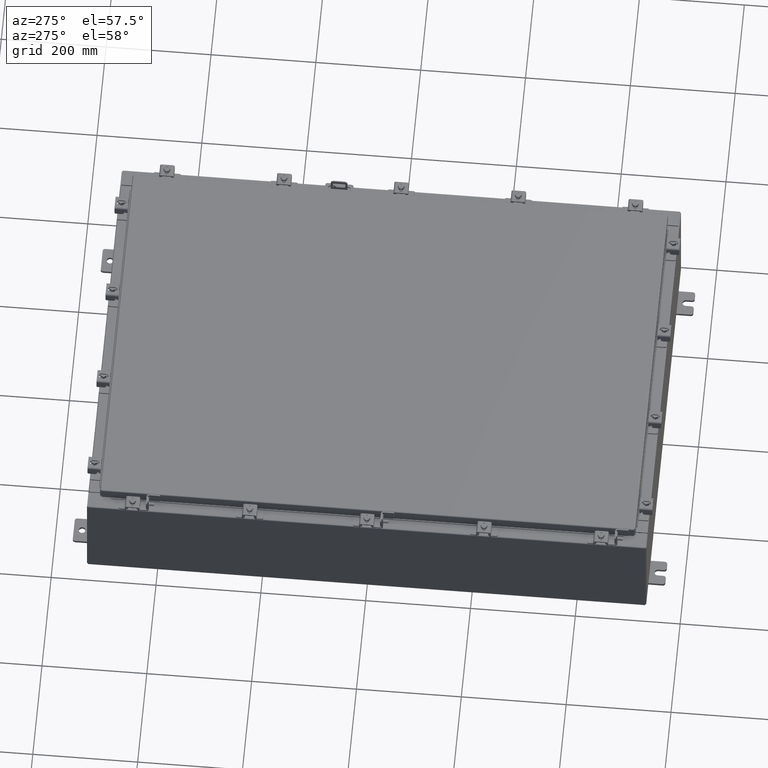
[diagram: clean part render]
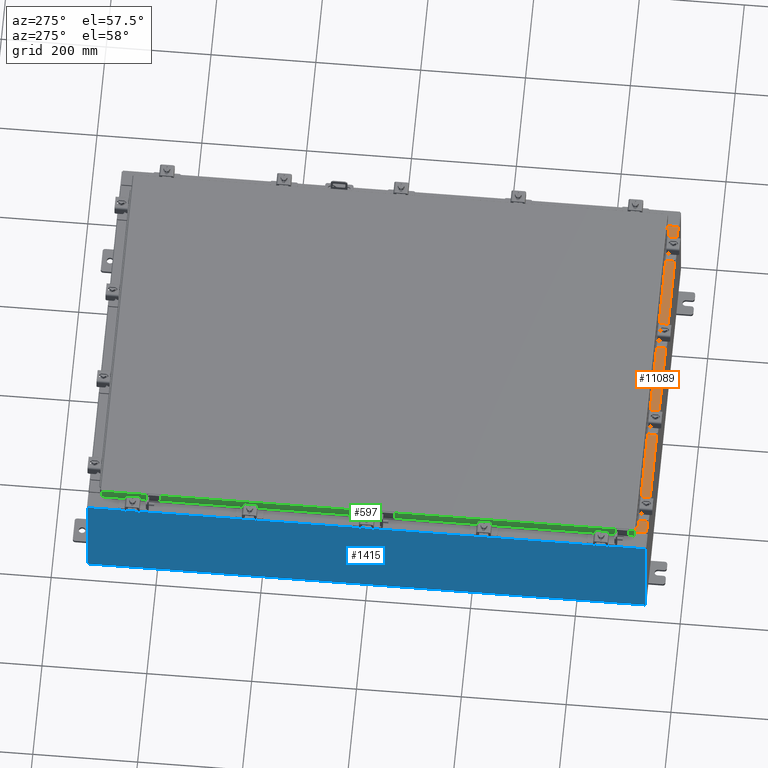
[diagram: same view with three faces highlighted in distinct colors, each labeled with its STEP entity id]
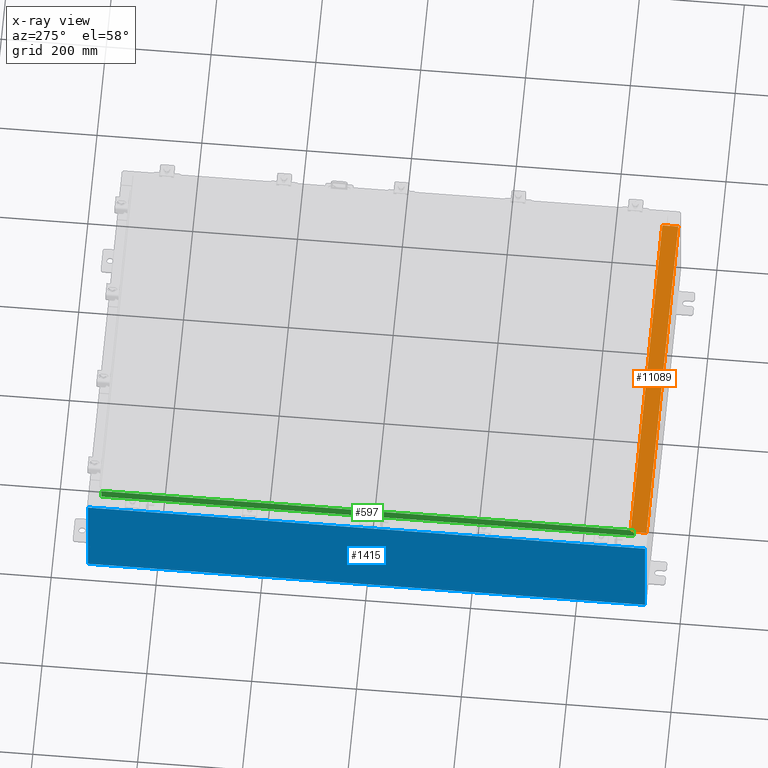
[diagram: x-ray of the same camera — body ghosted, the three highlighted faces saturated]
A machine part, auxiliary view with three faces highlighted in distinct colors.
The next image is the same camera in x-ray (body ghosted, the three faces saturated) — at least one of them is partly hidden behind the body in this view.
Their STEP definitions:

[orange] entity #11089 — the highlighted planar face has unit normal (-0, -0, 1).
#2276 = VECTOR ( 'NONE', #22507, 39.37007874015748100 ) ;
#4273 = AXIS2_PLACEMENT_3D ( 'NONE', #5434, #22500, #11197 ) ;
#4418 = CARTESIAN_POINT ( 'NONE',  ( -13.63719999999999800, -0.07469999999999973900, 4.000000000000000000 ) ) ;
#4537 = CARTESIAN_POINT ( 'NONE',  ( 13.63720000000000400, -1.300299999999999800, 4.000000000000004400 ) ) ;
#5434 = CARTESIAN_POINT ( 'NONE',  ( 0.0000000000000000000, 1.425992975200418500E-014, 4.000000000000000000 ) ) ;
#5699 = VERTEX_POINT ( 'NONE', #12413 ) ;
#5926 = LINE ( 'NONE', #4418, #15458 ) ;
#6346 = DIRECTION ( 'NONE',  ( -0.0000000000000000000, 1.000000000000000000, -3.566381192773190000E-015 ) ) ;
#6703 = LINE ( 'NONE', #4537, #16226 ) ;
#6845 = FACE_OUTER_BOUND ( 'NONE', #13673, .T. ) ;
#7366 = PLANE ( 'NONE',  #4273 ) ;
#7950 = VECTOR ( 'NONE', #9038, 39.37007874015748100 ) ;
#8749 = CARTESIAN_POINT ( 'NONE',  ( 13.63720000000000400, -1.287299999999999900, 4.000000000000004400 ) ) ;
#8803 = VERTEX_POINT ( 'NONE', #19413 ) ;
#9038 = DIRECTION ( 'NONE',  ( -1.000000000000000000, 2.003232330437526000E-017, -7.144290108027600900E-032 ) ) ;
#11089 = ADVANCED_FACE ( 'NONE', ( #6845 ), #7366, .T. ) ;
#11197 = DIRECTION ( 'NONE',  ( 0.0000000000000000000, -1.000000000000000000, 3.566381192773190000E-015 ) ) ;
#11356 = EDGE_CURVE ( 'NONE', #5699, #8803, #5926, .T. ) ;
#11949 = CARTESIAN_POINT ( 'NONE',  ( 13.63720000000000400, -0.08769999999999965300, 4.000000000000000000 ) ) ;
#12413 = CARTESIAN_POINT ( 'NONE',  ( -13.63719999999999800, -1.287299999999999200, 4.000000000000004400 ) ) ;
#12695 = ORIENTED_EDGE ( 'NONE', *, *, #18880, .T. ) ;
#12995 = LINE ( 'NONE', #24148, #7950 ) ;
#13102 = CARTESIAN_POINT ( 'NONE',  ( 13.63720000000000400, -1.287299999999999900, 4.000000000000003600 ) ) ;
#13408 = ORIENTED_EDGE ( 'NONE', *, *, #20035, .F. ) ;
#13673 = EDGE_LOOP ( 'NONE', ( #15565, #17013, #13408, #12695 ) ) ;
#15458 = VECTOR ( 'NONE', #6346, 39.37007874015748100 ) ;
#15565 = ORIENTED_EDGE ( 'NONE', *, *, #11356, .F. ) ;
#15715 = VERTEX_POINT ( 'NONE', #8749 ) ;
#16226 = VECTOR ( 'NONE', #17909, 39.37007874015748100 ) ;
#16232 = VERTEX_POINT ( 'NONE', #11949 ) ;
#16878 = LINE ( 'NONE', #13102, #2276 ) ;
#17013 = ORIENTED_EDGE ( 'NONE', *, *, #18273, .F. ) ;
#17909 = DIRECTION ( 'NONE',  ( -0.0000000000000000000, -1.000000000000000000, 3.566381192773190000E-015 ) ) ;
#18273 = EDGE_CURVE ( 'NONE', #15715, #5699, #16878, .T. ) ;
#18880 = EDGE_CURVE ( 'NONE', #16232, #8803, #12995, .T. ) ;
#19413 = CARTESIAN_POINT ( 'NONE',  ( -13.63719999999999800, -0.08770000000000000000, 4.000000000000000000 ) ) ;
#20035 = EDGE_CURVE ( 'NONE', #16232, #15715, #6703, .T. ) ;
#22500 = DIRECTION ( 'NONE',  ( 0.0000000000000000000, 3.566381192773190000E-015, 1.000000000000000000 ) ) ;
#22507 = DIRECTION ( 'NONE',  ( -1.000000000000000000, 0.0000000000000000000, 0.0000000000000000000 ) ) ;
#24148 = CARTESIAN_POINT ( 'NONE',  ( -1.756834753793995900E-018, -0.08770000000000000000, 4.000000000000000900 ) ) ;

[blue] entity #1415 — the highlighted planar face has unit normal (1, 0, 0).
#1119 = LINE ( 'NONE', #4477, #5585 ) ;
#1126 = CARTESIAN_POINT ( 'NONE',  ( -14.99999999999999800, -20.92529999999999300, -5.403395625144962100E-014 ) ) ;
#1382 = LINE ( 'NONE', #11733, #10353 ) ;
#1415 = ADVANCED_FACE ( 'NONE', ( #21354 ), #11130, .F. ) ;
#1437 = EDGE_CURVE ( 'NONE', #13198, #5420, #11308, .T. ) ;
#2257 = CARTESIAN_POINT ( 'NONE',  ( -14.99999999999999800, -20.92529999999998600, 0.01299999999999984700 ) ) ;
#2537 = EDGE_CURVE ( 'NONE', #15570, #13482, #1119, .T. ) ;
#3344 = EDGE_CURVE ( 'NONE', #13482, #5420, #1382, .T. ) ;
#4469 = CARTESIAN_POINT ( 'NONE',  ( -15.00000000000002700, -20.92529999999998600, 7.837599999999999200 ) ) ;
#4477 = CARTESIAN_POINT ( 'NONE',  ( -15.00000000000002700, -20.92529999999998900, 7.837599999999999200 ) ) ;
#5093 = VECTOR ( 'NONE', #10652, 39.37007874015748100 ) ;
#5420 = VERTEX_POINT ( 'NONE', #16261 ) ;
#5585 = VECTOR ( 'NONE', #6248, 39.37007874015748100 ) ;
#5693 = LINE ( 'NONE', #1126, #5093 ) ;
#6248 = DIRECTION ( 'NONE',  ( 0.0000000000000000000, 1.000000000000000000, 0.0000000000000000000 ) ) ;
#7683 = AXIS2_PLACEMENT_3D ( 'NONE', #10893, #11285, #11215 ) ;
#8867 = CARTESIAN_POINT ( 'NONE',  ( -15.00000000000002700, 20.92530000000000700, 7.837599999999999200 ) ) ;
#9959 = EDGE_CURVE ( 'NONE', #13198, #15570, #5693, .T. ) ;
#10353 = VECTOR ( 'NONE', #11531, 39.37007874015748100 ) ;
#10652 = DIRECTION ( 'NONE',  ( -3.584876173029202900E-015, 0.0000000000000000000, 1.000000000000000000 ) ) ;
#10893 = CARTESIAN_POINT ( 'NONE',  ( -14.99999999999999800, 0.0000000000000000000, -5.403395625144962100E-014 ) ) ;
#11130 = PLANE ( 'NONE',  #7683 ) ;
#11215 = DIRECTION ( 'NONE',  ( 3.584876173029202900E-015, 0.0000000000000000000, -1.000000000000000000 ) ) ;
#11285 = DIRECTION ( 'NONE',  ( 1.000000000000000000, 0.0000000000000000000, 3.584876173029202900E-015 ) ) ;
#11308 = LINE ( 'NONE', #11581, #15765 ) ;
#11487 = DIRECTION ( 'NONE',  ( -0.0000000000000000000, 1.000000000000000000, -0.0000000000000000000 ) ) ;
#11531 = DIRECTION ( 'NONE',  ( 3.584876173029202900E-015, 0.0000000000000000000, -1.000000000000000000 ) ) ;
#11581 = CARTESIAN_POINT ( 'NONE',  ( -14.99999999999999800, 20.92530000000000700, 0.01299999999999984700 ) ) ;
#11733 = CARTESIAN_POINT ( 'NONE',  ( -14.99999999999999800, 20.92530000000000700, -5.403395625144962100E-014 ) ) ;
#12577 = ORIENTED_EDGE ( 'NONE', *, *, #9959, .T. ) ;
#13198 = VERTEX_POINT ( 'NONE', #2257 ) ;
#13482 = VERTEX_POINT ( 'NONE', #8867 ) ;
#15030 = ORIENTED_EDGE ( 'NONE', *, *, #1437, .F. ) ;
#15151 = EDGE_LOOP ( 'NONE', ( #23696, #23065, #15030, #12577 ) ) ;
#15570 = VERTEX_POINT ( 'NONE', #4469 ) ;
#15765 = VECTOR ( 'NONE', #11487, 39.37007874015748100 ) ;
#16261 = CARTESIAN_POINT ( 'NONE',  ( -14.99999999999999800, 20.92530000000000700, 0.01299999999999983600 ) ) ;
#21354 = FACE_OUTER_BOUND ( 'NONE', #15151, .T. ) ;
#23065 = ORIENTED_EDGE ( 'NONE', *, *, #3344, .T. ) ;
#23696 = ORIENTED_EDGE ( 'NONE', *, *, #2537, .T. ) ;

[green] entity #597 — the highlighted planar face has unit normal (1, 0, -0).
#247 = CARTESIAN_POINT ( 'NONE',  ( -14.07799999999999900, 20.00515786437628000, -0.8499999999999948700 ) ) ;
#260 = EDGE_CURVE ( 'NONE', #9549, #24322, #15159, .T. ) ;
#597 = ADVANCED_FACE ( 'NONE', ( #14043 ), #19099, .F. ) ;
#977 = VERTEX_POINT ( 'NONE', #247 ) ;
#1389 = ORIENTED_EDGE ( 'NONE', *, *, #14724, .F. ) ;
#3239 = LINE ( 'NONE', #15502, #13998 ) ;
#4036 = VECTOR ( 'NONE', #18501, 39.37007874015748100 ) ;
#4099 = DIRECTION ( 'NONE',  ( 3.353319382355286300E-031, -1.000000000000000000, -9.140369321716364000E-046 ) ) ;
#4427 = VECTOR ( 'NONE', #11195, 39.37007874015748100 ) ;
#5213 = LINE ( 'NONE', #24110, #4036 ) ;
#5683 = DIRECTION ( 'NONE',  ( -2.818880942772360100E-015, 6.982962677686265900E-015, -1.000000000000000000 ) ) ;
#7585 = LINE ( 'NONE', #9532, #12637 ) ;
#7942 = VERTEX_POINT ( 'NONE', #9180 ) ;
#8526 = ORIENTED_EDGE ( 'NONE', *, *, #260, .F. ) ;
#9180 = CARTESIAN_POINT ( 'NONE',  ( -14.07799999999999800, -20.00515786437626900, -0.08770000000000007000 ) ) ;
#9532 = CARTESIAN_POINT ( 'NONE',  ( -14.07799999999998900, -19.25515786437626900, -0.8500000000000019800 ) ) ;
#9549 = VERTEX_POINT ( 'NONE', #12967 ) ;
#9741 = ORIENTED_EDGE ( 'NONE', *, *, #11253, .F. ) ;
#10007 = LINE ( 'NONE', #22782, #16237 ) ;
#10465 = CARTESIAN_POINT ( 'NONE',  ( -14.07799999999999800, 20.00515786437627200, -0.08770000000000007000 ) ) ;
#11195 = DIRECTION ( 'NONE',  ( 4.379057701015054300E-047, 1.000000000000000000, 1.189592412887544000E-016 ) ) ;
#11253 = EDGE_CURVE ( 'NONE', #22351, #7942, #3239, .T. ) ;
#11466 = DIRECTION ( 'NONE',  ( -2.818880942772360100E-015, 6.982962677686265900E-015, -1.000000000000000000 ) ) ;
#11653 = AXIS2_PLACEMENT_3D ( 'NONE', #18697, #19011, #19156 ) ;
#11984 = CARTESIAN_POINT ( 'NONE',  ( -14.07799999999999900, -20.09400000000000800, -0.8499999999999996400 ) ) ;
#12637 = VECTOR ( 'NONE', #22752, 39.37007874015748100 ) ;
#12758 = ORIENTED_EDGE ( 'NONE', *, *, #13922, .F. ) ;
#12967 = CARTESIAN_POINT ( 'NONE',  ( -14.07799999999999900, -20.00515786437626900, -0.8499999999999996400 ) ) ;
#13109 = EDGE_CURVE ( 'NONE', #7942, #9549, #21279, .T. ) ;
#13922 = EDGE_CURVE ( 'NONE', #17849, #977, #5213, .T. ) ;
#13998 = VECTOR ( 'NONE', #4099, 39.37007874015748100 ) ;
#14043 = FACE_OUTER_BOUND ( 'NONE', #23510, .T. ) ;
#14118 = EDGE_CURVE ( 'NONE', #22351, #977, #10007, .T. ) ;
#14724 = EDGE_CURVE ( 'NONE', #24322, #17849, #7585, .T. ) ;
#15159 = LINE ( 'NONE', #11984, #4427 ) ;
#15502 = CARTESIAN_POINT ( 'NONE',  ( -14.07799999999999800, -20.09400000000000800, -0.08770000000000007000 ) ) ;
#15785 = CARTESIAN_POINT ( 'NONE',  ( -14.07799999999998900, 19.25515786437628000, -0.8500000000000019800 ) ) ;
#16158 = ORIENTED_EDGE ( 'NONE', *, *, #13109, .F. ) ;
#16237 = VECTOR ( 'NONE', #11466, 39.37007874015748100 ) ;
#17849 = VERTEX_POINT ( 'NONE', #15785 ) ;
#18501 = DIRECTION ( 'NONE',  ( 4.379057701015054300E-047, 1.000000000000000000, 1.189592412887544000E-016 ) ) ;
#18697 = CARTESIAN_POINT ( 'NONE',  ( -14.07799999999999800, -4.720803026479770600E-030, 3.994501956836086200E-014 ) ) ;
#19011 = DIRECTION ( 'NONE',  ( 1.000000000000000000, 3.353319382355285900E-031, -2.818880942772360100E-015 ) ) ;
#19099 = PLANE ( 'NONE',  #11653 ) ;
#19156 = DIRECTION ( 'NONE',  ( -2.818880942772360100E-015, 0.0000000000000000000, -1.000000000000000000 ) ) ;
#19772 = CARTESIAN_POINT ( 'NONE',  ( -14.07799999999998900, -19.25515786437626500, -0.8500000000000019800 ) ) ;
#20095 = VECTOR ( 'NONE', #5683, 39.37007874015748100 ) ;
#20227 = ORIENTED_EDGE ( 'NONE', *, *, #14118, .T. ) ;
#21279 = LINE ( 'NONE', #24587, #20095 ) ;
#22351 = VERTEX_POINT ( 'NONE', #10465 ) ;
#22752 = DIRECTION ( 'NONE',  ( -0.0000000000000000000, 1.000000000000000000, -0.0000000000000000000 ) ) ;
#22782 = CARTESIAN_POINT ( 'NONE',  ( -14.07799999999999800, 20.00515786437627200, 1.796402902965222800E-013 ) ) ;
#23510 = EDGE_LOOP ( 'NONE', ( #9741, #20227, #12758, #1389, #8526, #16158 ) ) ;
#24110 = CARTESIAN_POINT ( 'NONE',  ( -14.07799999999999900, -20.09400000000000800, -0.8499999999999996400 ) ) ;
#24322 = VERTEX_POINT ( 'NONE', #19772 ) ;
#24587 = CARTESIAN_POINT ( 'NONE',  ( -14.07799999999999800, -20.00515786437627200, -0.07469999999999978000 ) ) ;